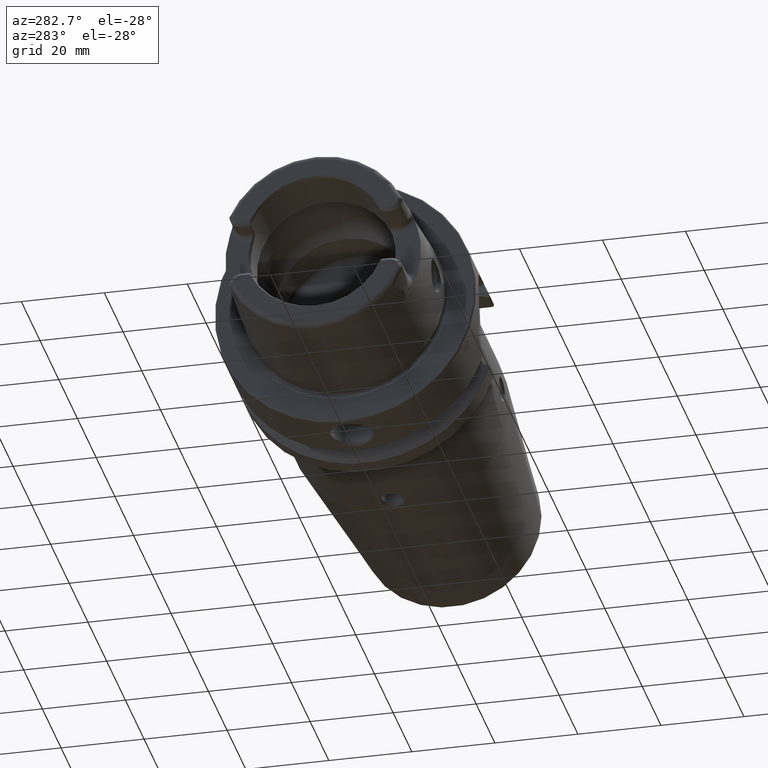
[diagram: clean part render]
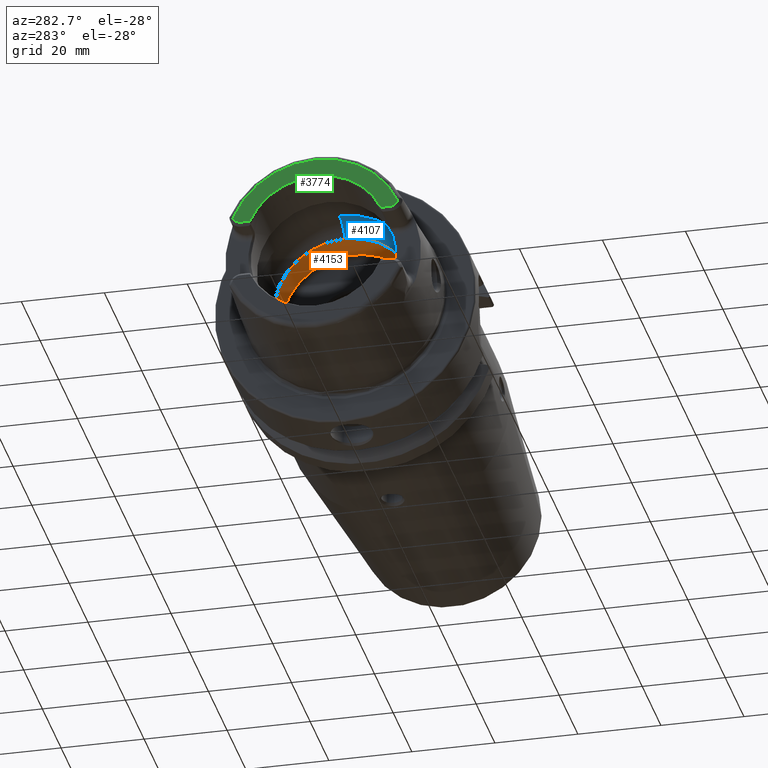
[diagram: same view with three faces highlighted in distinct colors, each labeled with its STEP entity id]
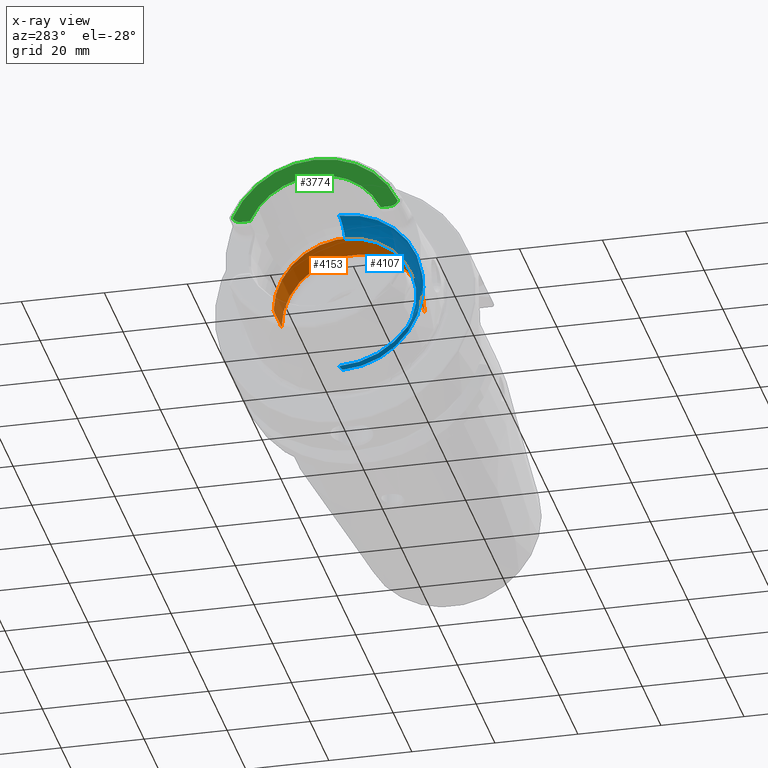
[diagram: x-ray of the same camera — body ghosted, the three highlighted faces saturated]
A machine part, auxiliary view with three faces highlighted in distinct colors.
The next image is the same camera in x-ray (body ghosted, the three faces saturated) — at least one of them is partly hidden behind the body in this view.
Their STEP definitions:

[orange] entity #4153 — the highlighted cylindrical surface (partial cylindrical patch) has radius 17.25 mm, axis along (1, 0, 0).
#841=CARTESIAN_POINT('',(0.E0,0.E0,0.E0));
#842=DIRECTION('',(1.E0,0.E0,0.E0));
#843=DIRECTION('',(0.E0,1.E0,0.E0));
#844=AXIS2_PLACEMENT_3D('',#841,#842,#843);
#851=CARTESIAN_POINT('',(3.346456692913E-1,0.E0,0.E0));
#852=DIRECTION('',(1.E0,0.E0,0.E0));
#853=DIRECTION('',(0.E0,1.E0,0.E0));
#854=AXIS2_PLACEMENT_3D('',#851,#852,#853);
#856=DIRECTION('',(1.E0,0.E0,5.379253814448E-13));
#857=VECTOR('',#856,3.346456692913E-1);
#858=CARTESIAN_POINT('',(0.E0,6.791338582677E-1,0.E0));
#859=LINE('',#858,#857);
#895=DIRECTION('',(1.E0,0.E0,-5.380587909867E-13));
#896=VECTOR('',#895,3.346456692913E-1);
#897=CARTESIAN_POINT('',(0.E0,-6.791338582677E-1,0.E0));
#898=LINE('',#897,#896);
#3199=CARTESIAN_POINT('',(0.E0,6.791338582677E-1,0.E0));
#3200=CARTESIAN_POINT('',(0.E0,-6.791338582677E-1,0.E0));
#3201=VERTEX_POINT('',#3199);
#3202=VERTEX_POINT('',#3200);
#3211=CARTESIAN_POINT('',(3.346456692913E-1,6.791338582677E-1,0.E0));
#3212=CARTESIAN_POINT('',(3.346456692913E-1,-6.791338582677E-1,0.E0));
#3213=VERTEX_POINT('',#3211);
#3214=VERTEX_POINT('',#3212);
#4139=CARTESIAN_POINT('',(0.E0,0.E0,0.E0));
#4140=DIRECTION('',(1.E0,0.E0,0.E0));
#4141=DIRECTION('',(0.E0,1.E0,0.E0));
#4142=AXIS2_PLACEMENT_3D('',#4139,#4140,#4141);
#4143=CYLINDRICAL_SURFACE('',#4142,6.791338582677E-1);
#4145=ORIENTED_EDGE('',*,*,#4144,.F.);
#4147=ORIENTED_EDGE('',*,*,#4146,.F.);
#4148=ORIENTED_EDGE('',*,*,#4128,.T.);
#4150=ORIENTED_EDGE('',*,*,#4149,.T.);
#4151=EDGE_LOOP('',(#4145,#4147,#4148,#4150));
#4152=FACE_OUTER_BOUND('',#4151,.F.);
#4153=ADVANCED_FACE('',(#4152),#4143,.F.);
#845=CIRCLE('',#844,6.791338582677E-1);
#855=CIRCLE('',#854,6.791338582677E-1);
#4128=EDGE_CURVE('',#3201,#3202,#845,.T.);
#4144=EDGE_CURVE('',#3213,#3214,#855,.T.);
#4146=EDGE_CURVE('',#3201,#3213,#859,.T.);
#4149=EDGE_CURVE('',#3202,#3214,#898,.T.);

[blue] entity #4107 — the highlighted toroidal blend (fillet) surface has major radius 11.7986 mm and minor (blend) radius 8.2014 mm.
#760=CARTESIAN_POINT('',(-2.460629921260E-1,-7.809777292935E-1,
-1.003743998739E-1));
#761=CARTESIAN_POINT('',(-2.402005167606E-1,-7.817904500629E-1,
-9.405090681336E-2));
#762=CARTESIAN_POINT('',(-2.292385755286E-1,-7.831163765237E-1,
-8.004374264075E-2));
#763=CARTESIAN_POINT('',(-2.160709145005E-1,-7.843328059987E-1,
-5.444410052114E-2));
#764=CARTESIAN_POINT('',(-2.082455432069E-1,-7.848949629276E-1,
-2.676616326652E-2));
#765=CARTESIAN_POINT('',(-2.066929133858E-1,-7.849923766583E-1,
-8.793227719460E-3));
#766=CARTESIAN_POINT('',(-2.066929133858E-1,-7.849923766583E-1,0.E0));
#768=CARTESIAN_POINT('',(-2.460629921260E-1,0.E0,-4.645120106011E-1));
#769=DIRECTION('',(0.E0,-1.E0,0.E0));
#770=DIRECTION('',(0.E0,0.E0,-1.E0));
#771=AXIS2_PLACEMENT_3D('',#768,#769,#770);
#773=CARTESIAN_POINT('',(0.E0,0.E0,0.E0));
#774=DIRECTION('',(1.E0,0.E0,0.E0));
#775=DIRECTION('',(0.E0,0.E0,1.E0));
#776=AXIS2_PLACEMENT_3D('',#773,#774,#775);
#778=CARTESIAN_POINT('',(-2.460629921260E-1,0.E0,4.645120106011E-1));
#779=DIRECTION('',(0.E0,-1.E0,0.E0));
#780=DIRECTION('',(7.620654936134E-1,0.E0,6.474999486052E-1));
#781=AXIS2_PLACEMENT_3D('',#778,#779,#780);
#783=CARTESIAN_POINT('',(-2.066929133858E-1,-7.849923766583E-1,0.E0));
#784=CARTESIAN_POINT('',(-2.066929133858E-1,-7.849923766583E-1,
8.917205662986E-3));
#785=CARTESIAN_POINT('',(-2.082950968867E-1,-7.848918185505E-1,
2.705640292416E-2));
#786=CARTESIAN_POINT('',(-2.161565827517E-1,-7.843256986775E-1,
5.463510373136E-2));
#787=CARTESIAN_POINT('',(-2.292881132747E-1,-7.831106111666E-1,
8.010902370640E-2));
#788=CARTESIAN_POINT('',(-2.402178728203E-1,-7.817880439752E-1,
9.406962773180E-2));
#789=CARTESIAN_POINT('',(-2.460629921260E-1,-7.809777292935E-1,
1.003743998739E-1));
#805=CARTESIAN_POINT('',(-2.460629921260E-1,-7.809777292935E-1,
-1.003743998739E-1));
#807=CARTESIAN_POINT('',(-2.460629921260E-1,-7.809777292935E-1,
1.003743998739E-1));
#823=CARTESIAN_POINT('',(-2.460629921260E-1,0.E0,0.E0));
#824=DIRECTION('',(1.E0,0.E0,0.E0));
#825=DIRECTION('',(0.E0,0.E0,1.E0));
#826=AXIS2_PLACEMENT_3D('',#823,#824,#825);
#836=CARTESIAN_POINT('',(-2.460629921260E-1,0.E0,0.E0));
#837=DIRECTION('',(1.E0,0.E0,0.E0));
#838=DIRECTION('',(0.E0,-9.918417211620E-1,-1.274754884772E-1));
#839=AXIS2_PLACEMENT_3D('',#836,#837,#838);
#2826=CARTESIAN_POINT('',(-2.460629921260E-1,0.E0,-7.874015708661E-1));
#2827=VERTEX_POINT('',#2826);
#2828=CARTESIAN_POINT('',(-2.460629921260E-1,0.E0,7.874015708661E-1));
#2829=VERTEX_POINT('',#2828);
#3067=VERTEX_POINT('',#805);
#3068=VERTEX_POINT('',#807);
#3070=VERTEX_POINT('',#766);
#3203=CARTESIAN_POINT('',(0.E0,0.E0,-6.735829842779E-1));
#3204=CARTESIAN_POINT('',(0.E0,0.E0,6.735829842779E-1));
#3205=VERTEX_POINT('',#3203);
#3206=VERTEX_POINT('',#3204);
#4090=CARTESIAN_POINT('',(-2.460629921260E-1,0.E0,0.E0));
#4091=DIRECTION('',(1.E0,0.E0,0.E0));
#4092=DIRECTION('',(0.E0,0.E0,1.E0));
#4093=AXIS2_PLACEMENT_3D('',#4090,#4091,#4092);
#4094=TOROIDAL_SURFACE('',#4093,4.645120106011E-1,3.228895602650E-1);
#4095=ORIENTED_EDGE('',*,*,#4008,.F.);
#4097=ORIENTED_EDGE('',*,*,#4096,.T.);
#4098=ORIENTED_EDGE('',*,*,#4084,.T.);
#4100=ORIENTED_EDGE('',*,*,#4099,.F.);
#4101=ORIENTED_EDGE('',*,*,#4080,.T.);
#4103=ORIENTED_EDGE('',*,*,#4102,.T.);
#4104=ORIENTED_EDGE('',*,*,#4064,.F.);
#4105=EDGE_LOOP('',(#4095,#4097,#4098,#4100,#4101,#4103,#4104));
#4106=FACE_OUTER_BOUND('',#4105,.F.);
#4107=ADVANCED_FACE('',(#4106),#4094,.F.);
#767=B_SPLINE_CURVE_WITH_KNOTS('',3,(#760,#761,#762,#763,#764,#765,#766),
.UNSPECIFIED.,.F.,.F.,(4,1,1,1,4),(0.E0,2.5E-1,5.E-1,7.5E-1,1.E0),
.UNSPECIFIED.);
#772=CIRCLE('',#771,3.228895602650E-1);
#777=CIRCLE('',#776,6.735829842779E-1);
#782=CIRCLE('',#781,3.228895602650E-1);
#790=B_SPLINE_CURVE_WITH_KNOTS('',3,(#783,#784,#785,#786,#787,#788,#789),
.UNSPECIFIED.,.F.,.F.,(4,1,1,1,4),(0.E0,2.5E-1,5.E-1,7.5E-1,1.E0),
.UNSPECIFIED.);
#827=CIRCLE('',#826,7.874015708661E-1);
#840=CIRCLE('',#839,7.874015708661E-1);
#4008=EDGE_CURVE('',#3067,#3070,#767,.T.);
#4064=EDGE_CURVE('',#3070,#3068,#790,.T.);
#4080=EDGE_CURVE('',#3206,#2829,#782,.T.);
#4084=EDGE_CURVE('',#2827,#3205,#772,.T.);
#4096=EDGE_CURVE('',#3067,#2827,#840,.T.);
#4099=EDGE_CURVE('',#3206,#3205,#777,.T.);
#4102=EDGE_CURVE('',#2829,#3068,#827,.T.);

[green] entity #3774 — the highlighted planar face has unit normal (1, 0, 0).
#336=CARTESIAN_POINT('',(-1.259842519685E0,6.211413067031E-1,
2.783464566929E-1));
#338=CARTESIAN_POINT('',(-1.259842519685E0,0.E0,0.E0));
#339=DIRECTION('',(1.E0,0.E0,0.E0));
#340=DIRECTION('',(0.E0,9.125620712653E-1,4.089382179351E-1));
#341=AXIS2_PLACEMENT_3D('',#338,#339,#340);
#343=DIRECTION('',(-2.319165805990E-13,1.E0,2.312794471358E-13));
#344=VECTOR('',#343,8.712640983232E-2);
#345=CARTESIAN_POINT('',(-1.259842519685E0,6.211413067031E-1,
2.783464566929E-1));
#346=LINE('',#345,#344);
#347=CARTESIAN_POINT('',(-1.259842519685E0,7.082677165354E-1,
3.602362204724E-1));
#348=DIRECTION('',(1.E0,0.E0,0.E0));
#349=DIRECTION('',(0.E0,0.E0,-1.E0));
#350=AXIS2_PLACEMENT_3D('',#347,#348,#349);
#352=CARTESIAN_POINT('',(-1.259842519685E0,-7.082677165354E-1,
3.602362204724E-1));
#353=DIRECTION('',(-1.E0,0.E0,0.E0));
#354=DIRECTION('',(0.E0,0.E0,-1.E0));
#355=AXIS2_PLACEMENT_3D('',#352,#353,#354);
#357=DIRECTION('',(-1.809459035443E-13,-1.E0,1.803087700811E-13));
#358=VECTOR('',#357,8.712640983232E-2);
#359=CARTESIAN_POINT('',(-1.259842519685E0,-6.211413067031E-1,
2.783464566929E-1));
#360=LINE('',#359,#358);
#409=CARTESIAN_POINT('',(-1.259842519685E0,0.E0,0.E0));
#410=DIRECTION('',(-1.E0,0.E0,0.E0));
#411=DIRECTION('',(0.E0,-9.224287428258E-1,3.861673399044E-1));
#412=AXIS2_PLACEMENT_3D('',#409,#410,#411);
#2580=CARTESIAN_POINT('',(-1.259842519685E0,-6.211413067031E-1,
2.783464566929E-1));
#3011=CARTESIAN_POINT('',(-1.259842519685E0,-7.082677165354E-1,
2.783464566929E-1));
#3012=CARTESIAN_POINT('',(-1.259842519685E0,-7.835586513393E-1,
3.280304981823E-1));
#3013=VERTEX_POINT('',#3011);
#3014=VERTEX_POINT('',#3012);
#3032=CARTESIAN_POINT('',(-1.259842519685E0,7.082677165354E-1,
2.783464566929E-1));
#3034=VERTEX_POINT('',#3032);
#3039=CARTESIAN_POINT('',(-1.259842519685E0,7.835586513393E-1,
3.280304981823E-1));
#3040=VERTEX_POINT('',#3039);
#3151=VERTEX_POINT('',#2580);
#3156=VERTEX_POINT('',#336);
#3758=CARTESIAN_POINT('',(-1.259842519685E0,0.E0,0.E0));
#3759=DIRECTION('',(1.E0,0.E0,0.E0));
#3760=DIRECTION('',(0.E0,0.E0,1.E0));
#3761=AXIS2_PLACEMENT_3D('',#3758,#3759,#3760);
#3762=PLANE('',#3761);
#3763=ORIENTED_EDGE('',*,*,#3747,.F.);
#3764=ORIENTED_EDGE('',*,*,#3737,.T.);
#3765=ORIENTED_EDGE('',*,*,#3720,.T.);
#3767=ORIENTED_EDGE('',*,*,#3766,.F.);
#3769=ORIENTED_EDGE('',*,*,#3768,.F.);
#3771=ORIENTED_EDGE('',*,*,#3770,.F.);
#3772=EDGE_LOOP('',(#3763,#3764,#3765,#3767,#3769,#3771));
#3773=FACE_OUTER_BOUND('',#3772,.F.);
#3774=ADVANCED_FACE('',(#3773),#3762,.F.);
#342=CIRCLE('',#341,6.806565013620E-1);
#351=CIRCLE('',#350,8.188976377953E-2);
#356=CIRCLE('',#355,8.188976377953E-2);
#413=CIRCLE('',#412,8.494516865757E-1);
#3720=EDGE_CURVE('',#3034,#3040,#351,.T.);
#3737=EDGE_CURVE('',#3156,#3034,#346,.T.);
#3747=EDGE_CURVE('',#3156,#3151,#342,.T.);
#3766=EDGE_CURVE('',#3014,#3040,#413,.T.);
#3768=EDGE_CURVE('',#3013,#3014,#356,.T.);
#3770=EDGE_CURVE('',#3151,#3013,#360,.T.);